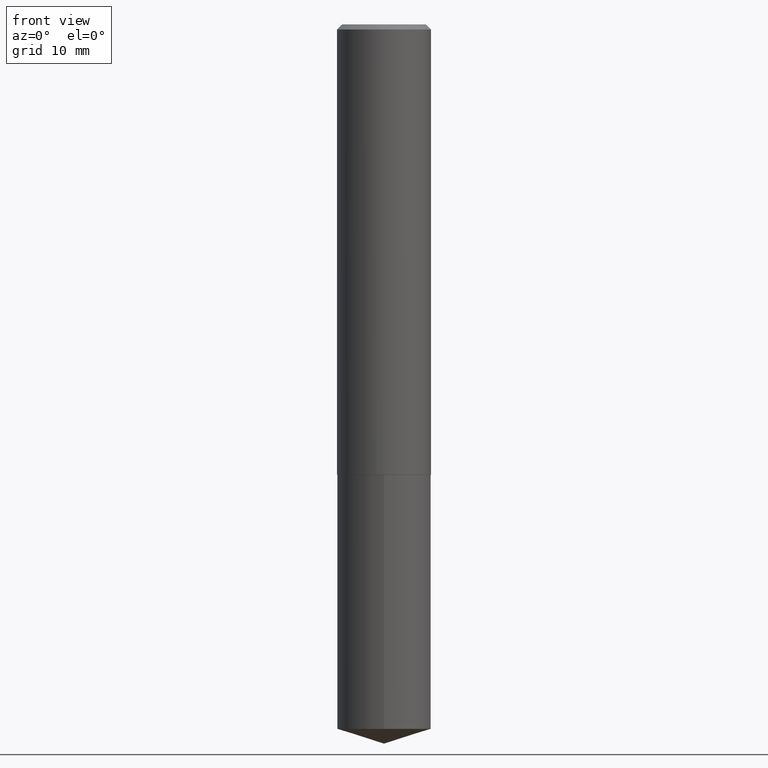
[diagram: clean part render]
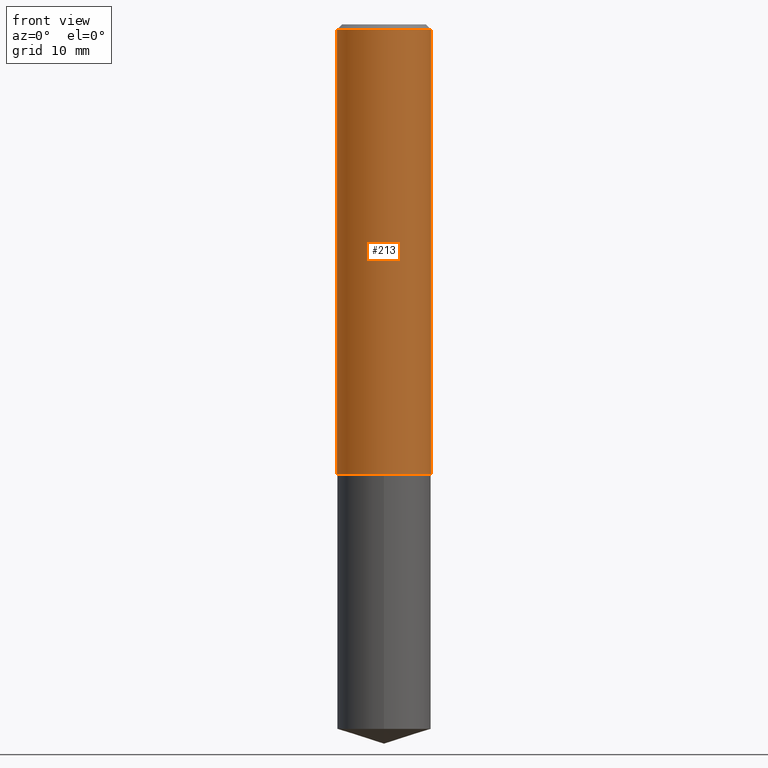
[diagram: same view with one face highlighted and labeled with its STEP entity id]
A machine part, front view. The second image highlights one B-rep face of the part: STEP entity #213.
In plain terms, the highlighted cylindrical surface (partial cylindrical patch) has radius 7.2504 mm, axis along (-0, 0, 1).
Its self-contained STEP definition (entity closure, byte-faithful):
#2 = DIRECTION ( 'NONE',  ( -2.445468806185136877E-29, 3.491481338843145188E-15, 1.000000000000000000 ) ) ;
#12 = DIRECTION ( 'NONE',  ( -2.445468806185136597E-29, 3.491481338843145583E-15, 1.000000000000000000 ) ) ;
#24 = VERTEX_POINT ( 'NONE', #120 ) ;
#39 = DIRECTION ( 'NONE',  ( 1.000000000000000000, -6.982962677686265922E-15, 0.000000000000000000 ) ) ;
#40 = DIRECTION ( 'NONE',  ( -2.445468806185136877E-29, 3.491481338843145188E-15, 1.000000000000000000 ) ) ;
#44 = DIRECTION ( 'NONE',  ( -2.445468806185136597E-29, 3.491481338843145583E-15, 1.000000000000000000 ) ) ;
#59 = CARTESIAN_POINT ( 'NONE',  ( -0.2854500000000001481, 2.028244239227207033E-15, -1.404110021513263625E-29 ) ) ;
#60 = VECTOR ( 'NONE', #40, 39.37007874015748143 ) ;
#84 = DIRECTION ( 'NONE',  ( 1.000000000000000000, -6.982962677686267499E-15, 0.000000000000000000 ) ) ;
#104 = EDGE_CURVE ( 'NONE', #300, #24, #219, .T. ) ;
#106 = CARTESIAN_POINT ( 'NONE',  ( 0.2854499999999999815, -2.102395488184393662E-15, -0.03125000000000020817 ) ) ;
#120 = CARTESIAN_POINT ( 'NONE',  ( -0.2854499999999999815, -2.802307480095755519E-15, -0.03125000000000020817 ) ) ;
#122 = VERTEX_POINT ( 'NONE', #106 ) ;
#131 = CARTESIAN_POINT ( 'NONE',  ( 0.2854500000000003146, -1.154528134315262530E-14, -2.735799999999999788 ) ) ;
#132 = EDGE_CURVE ( 'NONE', #159, #122, #194, .T. ) ;
#134 = DIRECTION ( 'NONE',  ( 1.000000000000000000, -6.982962677686265922E-15, 4.876176775795936353E-29 ) ) ;
#137 = CARTESIAN_POINT ( 'NONE',  ( 0.000000000000000000, 0.000000000000000000, 0.000000000000000000 ) ) ;
#139 = AXIS2_PLACEMENT_3D ( 'NONE', #137, #12, #134 ) ;
#159 = VERTEX_POINT ( 'NONE', #131 ) ;
#163 = CIRCLE ( 'NONE', #313, 0.2854499999999999815 ) ;
#167 = EDGE_CURVE ( 'NONE', #24, #122, #163, .T. ) ;
#179 = CARTESIAN_POINT ( 'NONE',  ( 6.690313559961295236E-29, -9.551994646807077580E-15, -2.735799999999999788 ) ) ;
#186 = ORIENTED_EDGE ( 'NONE', *, *, #350, .T. ) ;
#191 = CIRCLE ( 'NONE', #267, 0.2854500000000003146 ) ;
#194 = LINE ( 'NONE', #315, #60 ) ;
#195 = FACE_OUTER_BOUND ( 'NONE', #297, .T. ) ;
#213 = ADVANCED_FACE ( 'NONE', ( #195 ), #252, .T. ) ;
#219 = LINE ( 'NONE', #59, #312 ) ;
#252 = CYLINDRICAL_SURFACE ( 'NONE', #139, 0.2854500000000001481 ) ;
#257 = DIRECTION ( 'NONE',  ( -2.445468806185136597E-29, 3.491481338843145583E-15, 1.000000000000000000 ) ) ;
#267 = AXIS2_PLACEMENT_3D ( 'NONE', #179, #257, #84 ) ;
#292 = ORIENTED_EDGE ( 'NONE', *, *, #132, .T. ) ;
#297 = EDGE_LOOP ( 'NONE', ( #337, #186, #292, #302 ) ) ;
#300 = VERTEX_POINT ( 'NONE', #366 ) ;
#302 = ORIENTED_EDGE ( 'NONE', *, *, #167, .F. ) ;
#312 = VECTOR ( 'NONE', #2, 39.37007874015748143 ) ;
#313 = AXIS2_PLACEMENT_3D ( 'NONE', #317, #44, #39 ) ;
#315 = CARTESIAN_POINT ( 'NONE',  ( 0.2854500000000001481, -1.993286696345545744E-15, 1.391904660650950803E-29 ) ) ;
#317 = CARTESIAN_POINT ( 'NONE',  ( 7.642090019328602662E-31, -1.091087918388490267E-16, -0.03125000000000020817 ) ) ;
#337 = ORIENTED_EDGE ( 'NONE', *, *, #104, .F. ) ;
#350 = EDGE_CURVE ( 'NONE', #300, #159, #191, .T. ) ;
#366 = CARTESIAN_POINT ( 'NONE',  ( -0.2854500000000003146, -7.523750407579868575E-15, -2.735799999999999788 ) ) ;